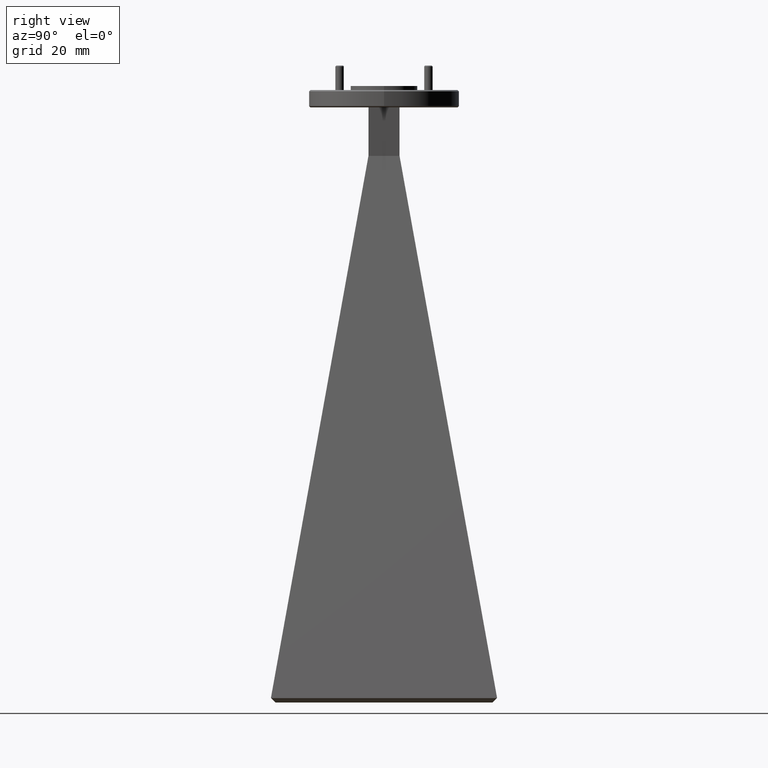
[diagram: clean part render]
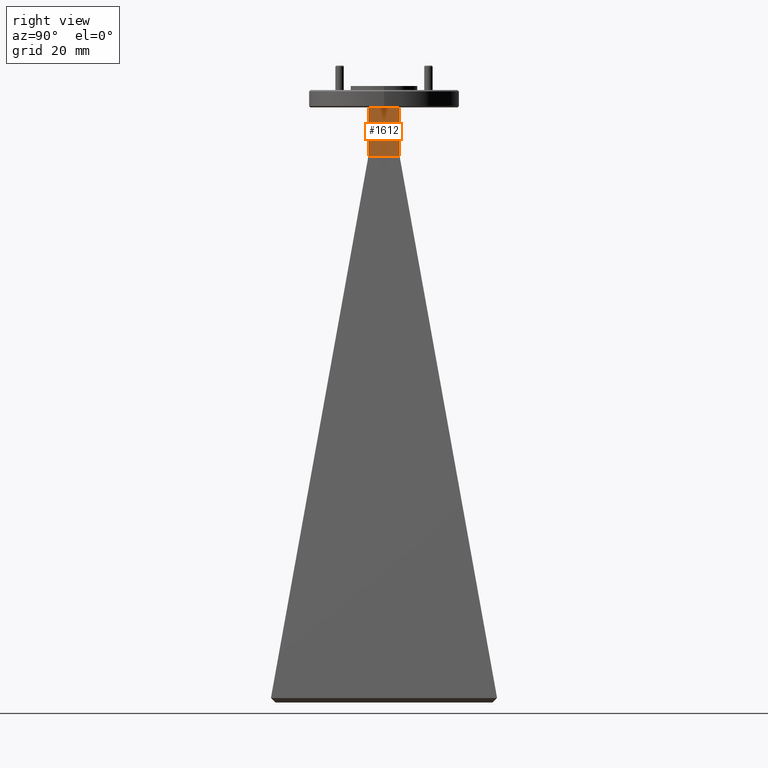
[diagram: same view with one face highlighted and labeled with its STEP entity id]
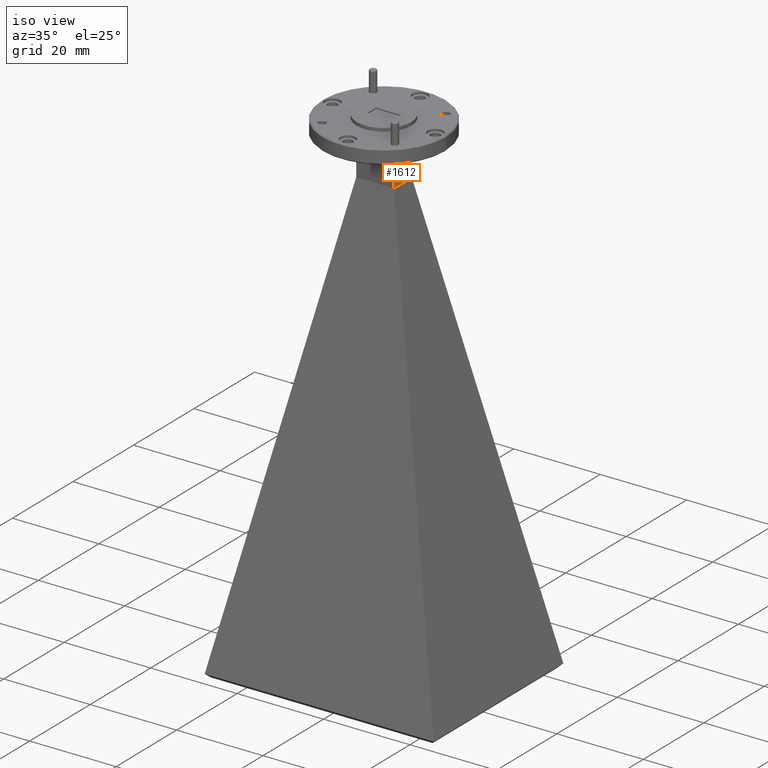
[diagram: same view with one face highlighted and labeled with its STEP entity id]
A machine part, right view. The second image highlights one B-rep face of the part: STEP entity #1612.
A second angle (iso view) of the same face is appended — the face is thin or edge-on in the first view.
In plain terms, the highlighted planar face has unit normal (-1, 0, 0).
Its self-contained STEP definition (entity closure, byte-faithful):
#39 = VECTOR ( 'NONE', #1115, 39.37007874015748100 ) ;
#68 = VERTEX_POINT ( 'NONE', #1091 ) ;
#111 = VECTOR ( 'NONE', #1418, 39.37007874015748100 ) ;
#142 = EDGE_CURVE ( 'NONE', #1430, #149, #899, .T. ) ;
#149 = VERTEX_POINT ( 'NONE', #904 ) ;
#321 = CARTESIAN_POINT ( 'NONE',  ( 0.1719999999999996000, 0.1159999999999997000, -0.5219999999999963600 ) ) ;
#376 = DIRECTION ( 'NONE',  ( -0.0000000000000000000, -0.0000000000000000000, 1.000000000000000000 ) ) ;
#399 = EDGE_LOOP ( 'NONE', ( #1903, #683, #2033, #709 ) ) ;
#471 = VECTOR ( 'NONE', #376, 39.37007874015748100 ) ;
#530 = CARTESIAN_POINT ( 'NONE',  ( 0.1720000000000000100, 0.1160000000000000200, -0.5220000000000000200 ) ) ;
#574 = LINE ( 'NONE', #2142, #111 ) ;
#595 = DIRECTION ( 'NONE',  ( -2.813448833805727500E-016, -1.000000000000000000, -6.055915852124118000E-017 ) ) ;
#601 = LINE ( 'NONE', #1152, #1524 ) ;
#683 = ORIENTED_EDGE ( 'NONE', *, *, #2235, .F. ) ;
#709 = ORIENTED_EDGE ( 'NONE', *, *, #142, .T. ) ;
#764 = PLANE ( 'NONE',  #1742 ) ;
#898 = CARTESIAN_POINT ( 'NONE',  ( 0.1719999999999996000, -0.1159999999999996300, -0.5219999999999963600 ) ) ;
#899 = LINE ( 'NONE', #1673, #471 ) ;
#901 = DIRECTION ( 'NONE',  ( -1.000000000000000000, 2.943801717310629400E-016, 0.0000000000000000000 ) ) ;
#904 = CARTESIAN_POINT ( 'NONE',  ( 0.1720000000000000100, 0.1160000000000000200, -0.1600000000000000000 ) ) ;
#976 = LINE ( 'NONE', #1313, #39 ) ;
#1065 = EDGE_CURVE ( 'NONE', #149, #68, #574, .T. ) ;
#1091 = CARTESIAN_POINT ( 'NONE',  ( 0.1719999999999999300, -0.1159999999999999400, -0.1600000000000000000 ) ) ;
#1115 = DIRECTION ( 'NONE',  ( -0.0000000000000000000, -0.0000000000000000000, 1.000000000000000000 ) ) ;
#1152 = CARTESIAN_POINT ( 'NONE',  ( 0.1719999999999998800, -1.677943919337059800E-017, -0.5219999999999995800 ) ) ;
#1313 = CARTESIAN_POINT ( 'NONE',  ( 0.1719999999999999300, -0.1159999999999999400, -0.5220000000000000200 ) ) ;
#1319 = FACE_OUTER_BOUND ( 'NONE', #399, .T. ) ;
#1418 = DIRECTION ( 'NONE',  ( -2.943801717310629400E-016, -1.000000000000000000, 0.0000000000000000000 ) ) ;
#1430 = VERTEX_POINT ( 'NONE', #321 ) ;
#1524 = VECTOR ( 'NONE', #595, 39.37007874015748100 ) ;
#1612 = ADVANCED_FACE ( 'NONE', ( #1319 ), #764, .F. ) ;
#1673 = CARTESIAN_POINT ( 'NONE',  ( 0.1720000000000000100, 0.1160000000000000200, -0.5220000000000000200 ) ) ;
#1742 = AXIS2_PLACEMENT_3D ( 'NONE', #530, #901, #1813 ) ;
#1796 = EDGE_CURVE ( 'NONE', #1430, #2079, #601, .T. ) ;
#1813 = DIRECTION ( 'NONE',  ( -2.943801717310629400E-016, -1.000000000000000000, 0.0000000000000000000 ) ) ;
#1903 = ORIENTED_EDGE ( 'NONE', *, *, #1065, .T. ) ;
#2033 = ORIENTED_EDGE ( 'NONE', *, *, #1796, .F. ) ;
#2079 = VERTEX_POINT ( 'NONE', #898 ) ;
#2142 = CARTESIAN_POINT ( 'NONE',  ( 0.1720000000000000100, 0.1160000000000000200, -0.1600000000000000000 ) ) ;
#2235 = EDGE_CURVE ( 'NONE', #2079, #68, #976, .T. ) ;